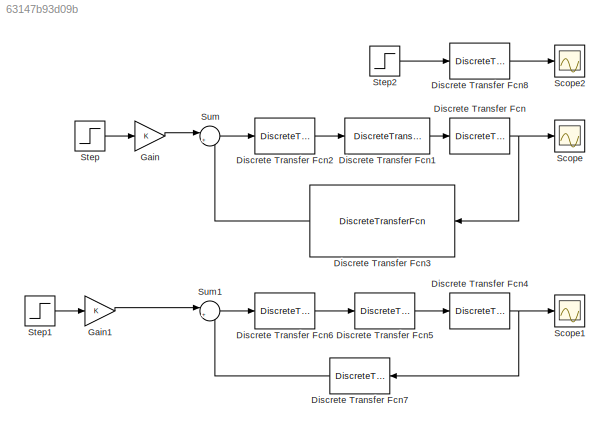
MODEL slx_63147b93d09b
KIND model
CONFIG AbsTol = auto
CONFIG EnableMultiTasking = off
CONFIG FixedStep = auto
CONFIG MaxStep = auto
CONFIG MinStep = auto
CONFIG RelTol = 1e-3
CONFIG SampleTimeConstraint = Unconstrained
CONFIG Solver = VariableStepAuto
CONFIG SolverName = VariableStepAuto
CONFIG StartTime = 0.0
CONFIG StopTime = 200
BLOCK [DiscreteTransferFcn] Discrete Transfer Fcn
  Denominator = M1D.den{1}
  InputPortMap = u0
  Numerator = M1D.num{1}
  Ports = [1, 1]
BLOCK [DiscreteTransferFcn] Discrete Transfer Fcn1
  Denominator = R
  InputPortMap = u0
  Numerator = [1,0]
  Ports = [1, 1]
  SampleTime = 0.005
BLOCK [DiscreteTransferFcn] Discrete Transfer Fcn2
  Denominator = [1,-1]
  InputPortMap = u0
  Numerator = [1,0]
  Ports = [1, 1]
BLOCK [DiscreteTransferFcn] Discrete Transfer Fcn3
  Denominator = S
  InputPortMap = u0
  Numerator = [1,0,0]
  Ports = [1, 1]
BLOCK [DiscreteTransferFcn] Discrete Transfer Fcn4
  Denominator = M1D.den{1}
  InputPortMap = u0
  Numerator = M1D.num{1}
  Ports = [1, 1]
  SampleTime = 0.005
BLOCK [DiscreteTransferFcn] Discrete Transfer Fcn5
  Denominator = R
  InputPortMap = u0
  Numerator = 1
  Ports = [1, 1]
BLOCK [DiscreteTransferFcn] Discrete Transfer Fcn6
  Denominator = [1,-1]
  InputPortMap = u0
  Numerator = 1
  Ports = [1, 1]
  SampleTime = 0.005
BLOCK [DiscreteTransferFcn] Discrete Transfer Fcn7
  Denominator = S
  InputPortMap = u0
  Numerator = 1
  Ports = [1, 1]
BLOCK [DiscreteTransferFcn] Discrete Transfer Fcn8
  Denominator = M1D.den{1}
  InputPortMap = u0
  Numerator = M1D.num{1}
  Ports = [1, 1]
BLOCK [Gain] Gain
  OutDataTypeStr = Inherit: Inherit via internal rule
  ParamDataTypeStr = Inherit: Inherit via internal rule
  SaturateOnIntegerOverflow = off
BLOCK [Gain] Gain1
  OutDataTypeStr = Inherit: Inherit via internal rule
  ParamDataTypeStr = Inherit: Inherit via internal rule
  SaturateOnIntegerOverflow = off
BLOCK [Scope] Scope
  Floating = off
  NumInputPorts = 1
  Ports = [1]
  ScopeSpecificationString = Simulink.scopes.TimeScopeBlockCfg('CurrentConfiguration', extmgr.ConfigurationSet(extmgr.Configuration('Core','General UI',true),extmgr.Configuration('Core','Source UI',true),extmgr.Configuration('Sources','WiredSimulink',true),extmgr.Configuration('Visuals','Time Domain',true,'SerializedDisplays',{struct('MinYLimReal','-45145786627675741439269571134941498904268496864531435536845317103437552952797...<+2903ch>
BLOCK [Scope] Scope1
  Floating = off
  NumInputPorts = 1
  Ports = [1]
  ScopeSpecificationString = Simulink.scopes.TimeScopeBlockCfg('CurrentConfiguration', extmgr.ConfigurationSet(extmgr.Configuration('Core','General UI',true),extmgr.Configuration('Core','Source UI',true),extmgr.Configuration('Sources','WiredSimulink',true,'DataLoggingVariableName','ScopeData1'),extmgr.Configuration('Visuals','Time Domain',true,'SerializedDisplays',{struct('MinYLimReal','-56165804182114279982302832178767431752...<+2971ch>
BLOCK [Scope] Scope2
  Floating = off
  NumInputPorts = 1
  Ports = [1]
  ScopeSpecificationString = Simulink.scopes.TimeScopeBlockCfg('CurrentConfiguration', extmgr.ConfigurationSet(extmgr.Configuration('Core','General UI',true),extmgr.Configuration('Core','Source UI',true),extmgr.Configuration('Sources','WiredSimulink',true,'DataLoggingVariableName','ScopeData2'),extmgr.Configuration('Visuals','Time Domain',true,'SerializedDisplays',{struct('MinYLimReal','-102.498','MaxYLimReal','922.48201','YL...<+1391ch>
BLOCK [Step] Step
  SampleTime = 0
  Time = 0
BLOCK [Step] Step1
  SampleTime = 0
  Time = 0
BLOCK [Step] Step2
  SampleTime = 0
  Time = 0
BLOCK [Sum] Sum
  IconShape = round
  InputSameDT = off
  Inputs = |+-
  OutDataTypeStr = Inherit: Inherit via internal rule
  Ports = [2, 1]
  SaturateOnIntegerOverflow = off
BLOCK [Sum] Sum1
  IconShape = round
  InputSameDT = off
  Inputs = |+-
  OutDataTypeStr = Inherit: Inherit via internal rule
  Ports = [2, 1]
  SaturateOnIntegerOverflow = off
LINE Discrete Transfer Fcn1:1 -> Discrete Transfer Fcn:1
LINE Discrete Transfer Fcn2:1 -> Discrete Transfer Fcn1:1
LINE Discrete Transfer Fcn3:1 -> Sum:2
NET Discrete Transfer Fcn4:1 -> Discrete Transfer Fcn7:1, Scope1:1
LINE Discrete Transfer Fcn5:1 -> Discrete Transfer Fcn4:1
LINE Discrete Transfer Fcn6:1 -> Discrete Transfer Fcn5:1
LINE Discrete Transfer Fcn7:1 -> Sum1:2
LINE Discrete Transfer Fcn8:1 -> Scope2:1
NET Discrete Transfer Fcn:1 -> Discrete Transfer Fcn3:1, Scope:1
LINE Gain1:1 -> Sum1:1
LINE Gain:1 -> Sum:1
LINE Step1:1 -> Gain1:1
LINE Step2:1 -> Discrete Transfer Fcn8:1
LINE Step:1 -> Gain:1
LINE Sum1:1 -> Discrete Transfer Fcn6:1
LINE Sum:1 -> Discrete Transfer Fcn2:1
note: NET lines group one-source signal fan-out (src -> all destinations, sorted); 1:1 wires keep LINE
